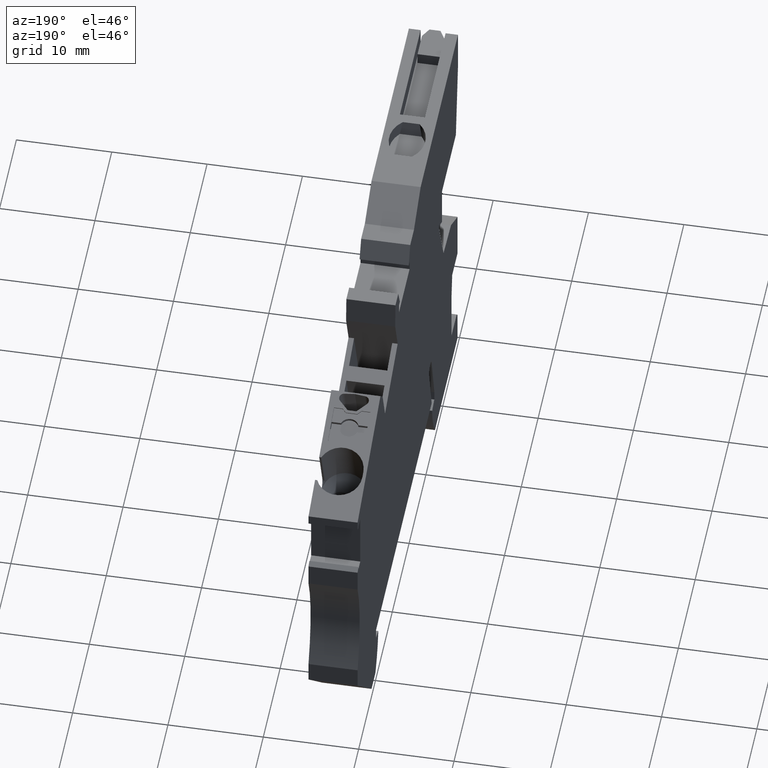
[diagram: clean part render]
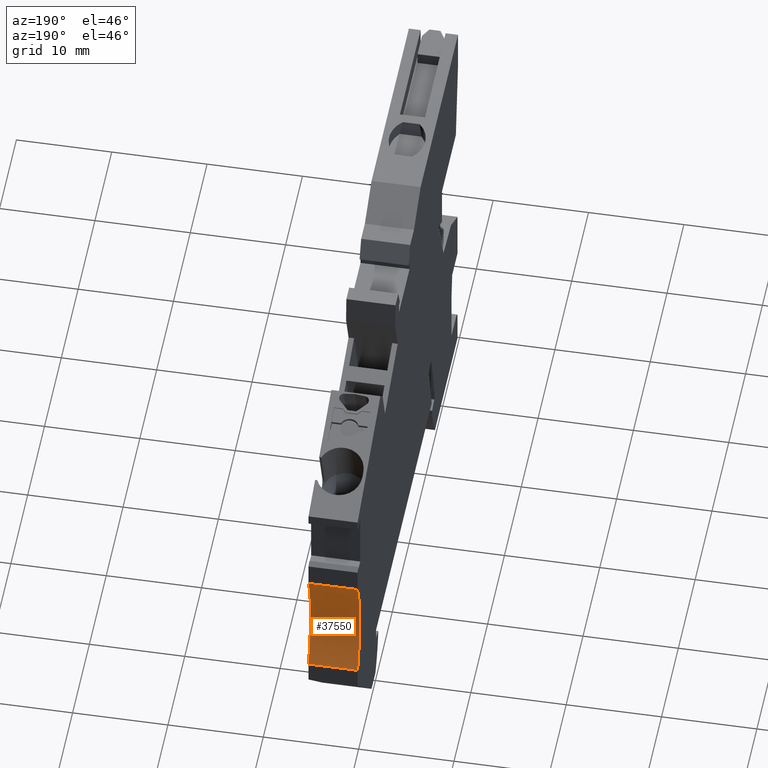
[diagram: same view with one face highlighted and labeled with its STEP entity id]
A machine part, auxiliary view. The second image highlights one B-rep face of the part: STEP entity #37550.
In plain terms, the highlighted cylindrical surface (partial cylindrical patch) has radius 15 mm, axis along (1, -0, 0).
Its self-contained STEP definition (entity closure, byte-faithful):
#5230=CARTESIAN_POINT('',(61.7934902048265,24.747355347774,
-1.4121310698556E-7));
#5240=VERTEX_POINT('',#5230);
#5270=CARTESIAN_POINT('',(76.169959877158,20.4675049110686,
-1.4121310698556E-7));
#5280=DIRECTION('',(-1.47043672733197E-27,-1.29373188456246E-27,1.));
#5290=DIRECTION('',(0.992546151641329,0.12186934340509,
1.61558713389261E-27));
#5300=AXIS2_PLACEMENT_3D('',#5270,#5280,#5290);
#5310=CIRCLE('',#5300,15.);
#5320=CARTESIAN_POINT('',(63.2559223256796,12.836801528071,
-1.4121310698556E-7));
#5330=VERTEX_POINT('',#5320);
#5340=EDGE_CURVE('',#5240,#5330,#5310,.T.);
#5610=CARTESIAN_POINT('',(63.2559223256796,12.836801528071,
-5.15000014116697));
#5620=VERTEX_POINT('',#5610);
#5670=CARTESIAN_POINT('',(76.169959877158,20.4675049110686,
-5.15000014121311));
#5680=DIRECTION('',(-1.47043672733197E-27,-1.29373188456246E-27,1.));
#5690=DIRECTION('',(0.992546151641329,0.12186934340509,
1.61558713389261E-27));
#5700=AXIS2_PLACEMENT_3D('',#5670,#5680,#5690);
#5710=CIRCLE('',#5700,15.);
#5720=CARTESIAN_POINT('',(61.7934902048209,24.7473553477757,
-5.15000014116648));
#5730=VERTEX_POINT('',#5720);
#5740=EDGE_CURVE('',#5730,#5620,#5710,.T.);
#10980=CARTESIAN_POINT('',(61.7934902048269,24.7473553477712,
-5.15000014121311));
#10990=DIRECTION('',(-1.47043672733197E-27,-1.29373188456246E-27,1.));
#11000=VECTOR('',#10990,1.);
#11010=LINE('',#10980,#11000);
#11020=EDGE_CURVE('',#5730,#5240,#11010,.T.);
#37390=CARTESIAN_POINT('',(76.1699598771494,20.4675049110644,
-5.15000014121311));
#37400=DIRECTION('',(-1.47043672733197E-27,-1.29373188456246E-27,1.));
#37410=DIRECTION('',(0.992546151641326,0.121869343405112,
1.61558713389263E-27));
#37420=AXIS2_PLACEMENT_3D('',#37390,#37400,#37410);
#37430=CYLINDRICAL_SURFACE('',#37420,15.);
#37440=ORIENTED_EDGE('',*,*,#11020,.T.);
#37450=ORIENTED_EDGE('',*,*,#5740,.F.);
#37460=CARTESIAN_POINT('',(63.2559223256796,12.836801528071,
-5.15000014121311));
#37470=DIRECTION('',(-1.47043672733197E-27,-1.29373188456246E-27,1.));
#37480=VECTOR('',#37470,1.);
#37490=LINE('',#37460,#37480);
#37500=EDGE_CURVE('',#5620,#5330,#37490,.T.);
#37510=ORIENTED_EDGE('',*,*,#37500,.F.);
#37520=ORIENTED_EDGE('',*,*,#5340,.T.);
#37530=EDGE_LOOP('',(#37520,#37510,#37450,#37440));
#37540=FACE_OUTER_BOUND('',#37530,.T.);
#37550=ADVANCED_FACE('',(#37540),#37430,.F.);